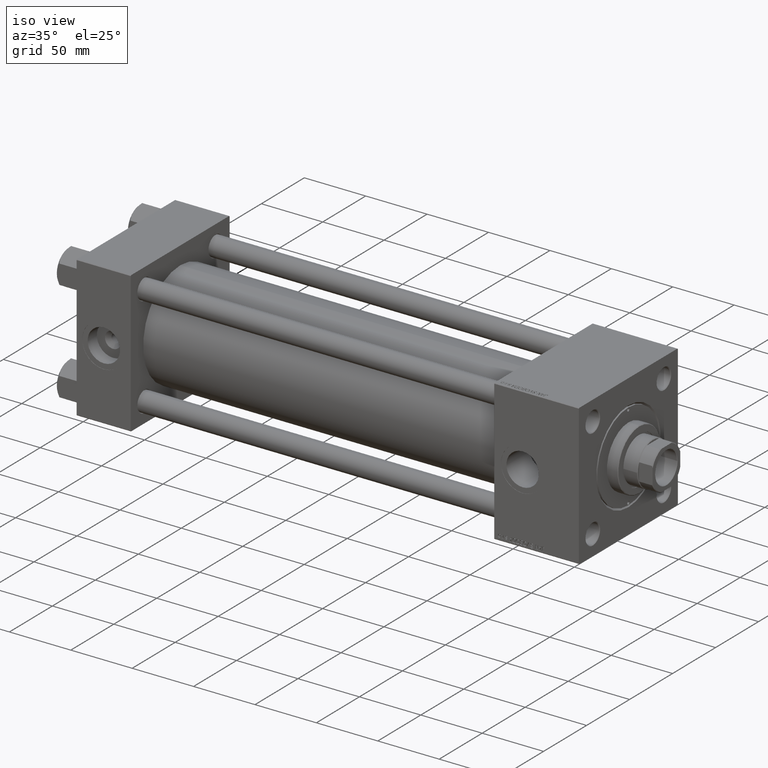
[diagram: clean part render]
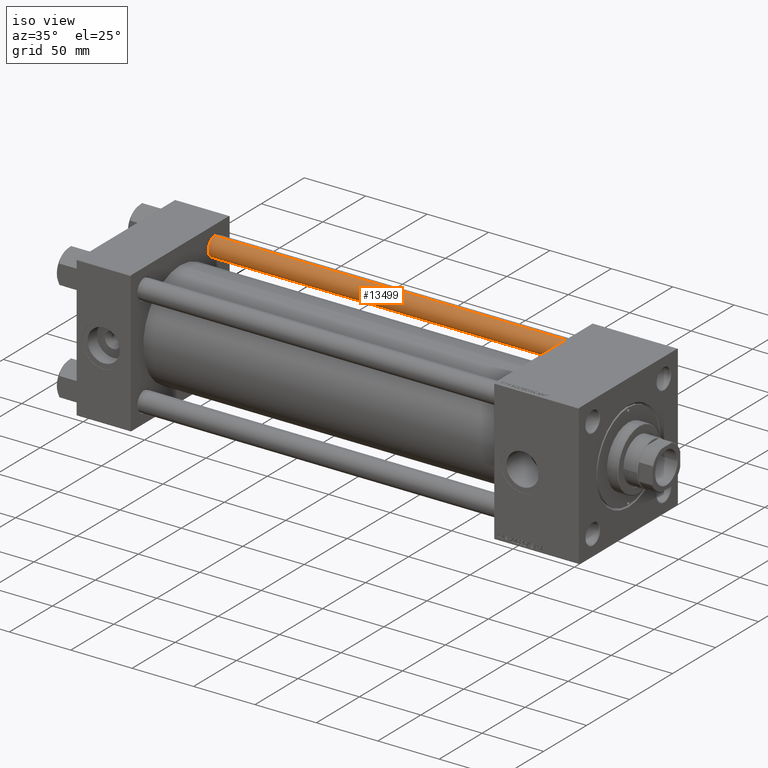
[diagram: same view with one face highlighted and labeled with its STEP entity id]
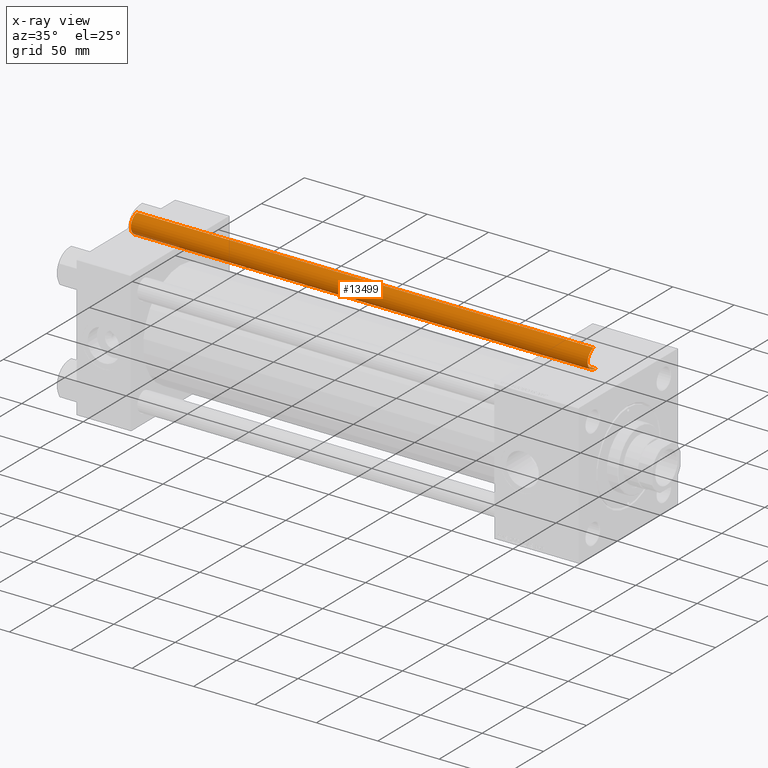
[diagram: x-ray of the same camera — body ghosted, the highlighted face saturated]
A machine part, iso view. The second image highlights one B-rep face of the part: STEP entity #13499.
The next image is the same camera in x-ray: the body ghosted, the highlighted face saturated — about 1% of this face is hidden behind the body in this view.
In plain terms, the highlighted cylindrical surface (edge-blend (fillet) strip) has radius 8 mm, axis along (-1, 0, 0).
Its self-contained STEP definition (entity closure, byte-faithful):
#3 = EDGE_CURVE ( 'NONE', #5923, #32270, #13744, .T. ) ;
#1262 = EDGE_CURVE ( 'NONE', #32270, #23247, #36538, .T. ) ;
#2782 = ORIENTED_EDGE ( 'NONE', *, *, #3, .T. ) ;
#4747 = AXIS2_PLACEMENT_3D ( 'NONE', #40976, #48421, #36603 ) ;
#4808 = AXIS2_PLACEMENT_3D ( 'NONE', #35840, #23504, #24254 ) ;
#5923 = VERTEX_POINT ( 'NONE', #33220 ) ;
#6063 = CARTESIAN_POINT ( 'NONE',  ( 0.000000000000000000, 0.000000000000000000, 0.5000000000000559552 ) ) ;
#6972 = VECTOR ( 'NONE', #17598, 1000.000000000000000 ) ;
#8235 = EDGE_CURVE ( 'NONE', #34328, #23247, #33080, .T. ) ;
#12453 = CYLINDRICAL_SURFACE ( 'NONE', #4808, 8.000000000000000000 ) ;
#12866 = VECTOR ( 'NONE', #33595, 1000.000000000000000 ) ;
#13499 = ADVANCED_FACE ( 'NONE', ( #43059 ), #12453, .T. ) ;
#13744 = LINE ( 'NONE', #26062, #6972 ) ;
#14476 = ORIENTED_EDGE ( 'NONE', *, *, #8235, .F. ) ;
#17598 = DIRECTION ( 'NONE',  ( -0.000000000000000000, -0.000000000000000000, -1.000000000000000000 ) ) ;
#17631 = CARTESIAN_POINT ( 'NONE',  ( 8.000000000000000000, 9.797174393178825657E-16, 0.5000000000000559552 ) ) ;
#18508 = AXIS2_PLACEMENT_3D ( 'NONE', #6063, #25818, #37653 ) ;
#22696 = CARTESIAN_POINT ( 'NONE',  ( -8.000000000000000000, 0.000000000000000000, 0.5000000000000559552 ) ) ;
#23247 = VERTEX_POINT ( 'NONE', #17631 ) ;
#23504 = DIRECTION ( 'NONE',  ( -0.000000000000000000, -0.000000000000000000, -1.000000000000000000 ) ) ;
#23697 = EDGE_LOOP ( 'NONE', ( #14476, #47568, #2782, #26014 ) ) ;
#24254 = DIRECTION ( 'NONE',  ( -1.000000000000000000, 0.000000000000000000, 0.000000000000000000 ) ) ;
#25345 = CARTESIAN_POINT ( 'NONE',  ( 8.000000000000000000, 9.797174393178825657E-16, 373.0000000000000000 ) ) ;
#25818 = DIRECTION ( 'NONE',  ( -0.000000000000000000, -0.000000000000000000, 1.000000000000000000 ) ) ;
#26014 = ORIENTED_EDGE ( 'NONE', *, *, #1262, .T. ) ;
#26062 = CARTESIAN_POINT ( 'NONE',  ( -8.000000000000000000, 0.000000000000000000, 373.0000000000000000 ) ) ;
#32270 = VERTEX_POINT ( 'NONE', #22696 ) ;
#33080 = LINE ( 'NONE', #25345, #12866 ) ;
#33220 = CARTESIAN_POINT ( 'NONE',  ( -8.000000000000000000, 0.000000000000000000, 372.5000000000000000 ) ) ;
#33484 = CIRCLE ( 'NONE', #4747, 8.000000000000000000 ) ;
#33595 = DIRECTION ( 'NONE',  ( -0.000000000000000000, -0.000000000000000000, -1.000000000000000000 ) ) ;
#34328 = VERTEX_POINT ( 'NONE', #40192 ) ;
#35279 = EDGE_CURVE ( 'NONE', #34328, #5923, #33484, .T. ) ;
#35840 = CARTESIAN_POINT ( 'NONE',  ( 0.000000000000000000, 0.000000000000000000, 373.0000000000000000 ) ) ;
#36538 = CIRCLE ( 'NONE', #18508, 8.000000000000000000 ) ;
#36603 = DIRECTION ( 'NONE',  ( 1.000000000000000000, 0.000000000000000000, 0.000000000000000000 ) ) ;
#37653 = DIRECTION ( 'NONE',  ( 1.000000000000000000, 0.000000000000000000, 0.000000000000000000 ) ) ;
#40192 = CARTESIAN_POINT ( 'NONE',  ( 8.000000000000000000, 9.797174393178825657E-16, 372.5000000000000000 ) ) ;
#40976 = CARTESIAN_POINT ( 'NONE',  ( 0.000000000000000000, 0.000000000000000000, 372.5000000000000000 ) ) ;
#43059 = FACE_OUTER_BOUND ( 'NONE', #23697, .T. ) ;
#47568 = ORIENTED_EDGE ( 'NONE', *, *, #35279, .T. ) ;
#48421 = DIRECTION ( 'NONE',  ( 0.000000000000000000, 0.000000000000000000, -1.000000000000000000 ) ) ;